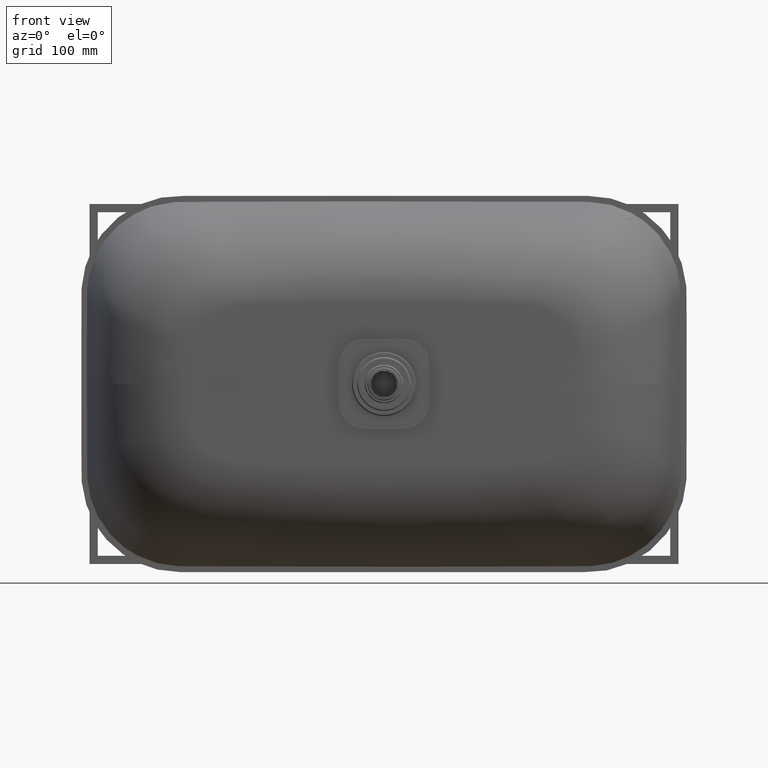
[diagram: clean part render]
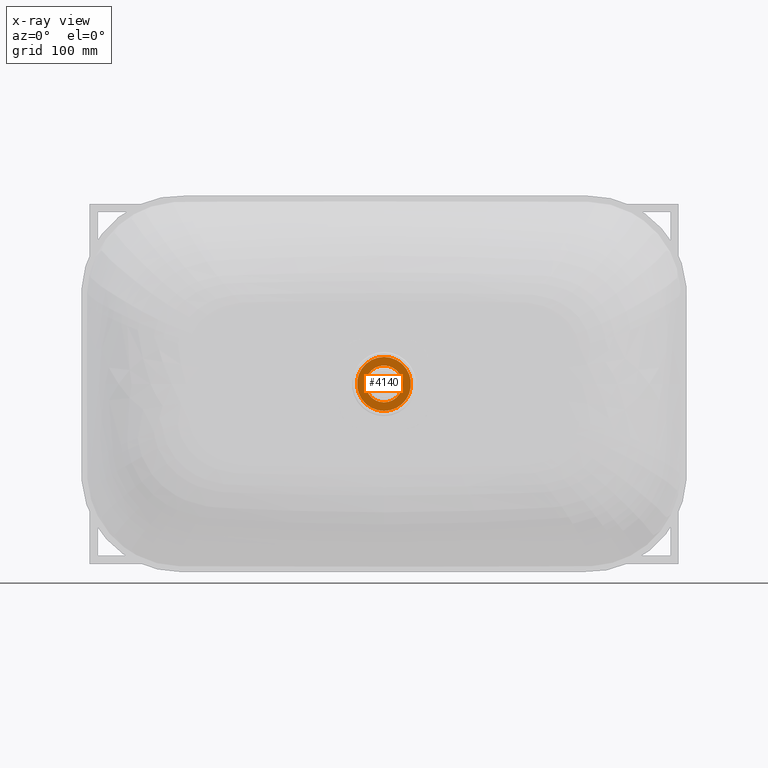
[diagram: x-ray — body ghosted, one internal face saturated and labeled with its STEP entity id]
A machine part, front view, then the same camera in x-ray: the body is ghosted and one INTERNAL B-rep face — a face not visible from any outside direction — is saturated and labeled: STEP entity #4140.
In plain terms, the highlighted planar face has unit normal (0, -1, 0).
Its self-contained STEP definition (entity closure, byte-faithful):
#735 = EDGE_LOOP ( 'NONE', ( #36099, #75787 ) ) ;
#2537 = CIRCLE ( 'NONE', #29533, 22.50000000000000400 ) ;
#3317 = FACE_BOUND ( 'NONE', #735, .T. ) ;
#4140 = ADVANCED_FACE ( 'NONE', ( #3317, #37490 ), #40359, .T. ) ;
#4175 = DIRECTION ( 'NONE',  ( 0.0000000000000000000, 0.0000000000000000000, -1.000000000000000000 ) ) ;
#10512 = CARTESIAN_POINT ( 'NONE',  ( 8.326672684688674100E-014, -136.9999999999998900, 4.718447854656915300E-013 ) ) ;
#15621 = DIRECTION ( 'NONE',  ( 0.0000000000000000000, -1.000000000000000000, 0.0000000000000000000 ) ) ;
#16891 = VERTEX_POINT ( 'NONE', #78501 ) ;
#16969 = DIRECTION ( 'NONE',  ( 0.0000000000000000000, 0.0000000000000000000, -1.000000000000000000 ) ) ;
#18504 = CIRCLE ( 'NONE', #26324, 33.00000000000000000 ) ;
#20801 = CARTESIAN_POINT ( 'NONE',  ( 8.326672684688674100E-014, -136.9999999999998900, 4.718447854656915300E-013 ) ) ;
#21133 = CIRCLE ( 'NONE', #60811, 33.00000000000000000 ) ;
#21530 = ORIENTED_EDGE ( 'NONE', *, *, #49775, .T. ) ;
#22096 = VERTEX_POINT ( 'NONE', #34598 ) ;
#22290 = CARTESIAN_POINT ( 'NONE',  ( 8.326672684688674100E-014, -136.9999999999998900, 4.718447854656915300E-013 ) ) ;
#23921 = ORIENTED_EDGE ( 'NONE', *, *, #33263, .T. ) ;
#26233 = EDGE_CURVE ( 'NONE', #73075, #36573, #26998, .T. ) ;
#26324 = AXIS2_PLACEMENT_3D ( 'NONE', #80923, #42624, #4175 ) ;
#26998 = CIRCLE ( 'NONE', #41733, 22.50000000000000400 ) ;
#27254 = DIRECTION ( 'NONE',  ( 0.0000000000000000000, 0.0000000000000000000, -1.000000000000000000 ) ) ;
#28336 = EDGE_CURVE ( 'NONE', #36573, #73075, #2537, .T. ) ;
#28756 = DIRECTION ( 'NONE',  ( 0.0000000000000000000, 0.0000000000000000000, -1.000000000000000000 ) ) ;
#29533 = AXIS2_PLACEMENT_3D ( 'NONE', #20801, #65629, #27254 ) ;
#31406 = CARTESIAN_POINT ( 'NONE',  ( 8.326672684688674100E-014, -136.9999999999998900, -22.49999999999953100 ) ) ;
#31943 = AXIS2_PLACEMENT_3D ( 'NONE', #73596, #15621, #60195 ) ;
#32772 = CARTESIAN_POINT ( 'NONE',  ( 8.602218214496828100E-014, -136.9999999999998900, 22.50000000000047600 ) ) ;
#33263 = EDGE_CURVE ( 'NONE', #16891, #22096, #18504, .T. ) ;
#34598 = CARTESIAN_POINT ( 'NONE',  ( 8.326672684688674100E-014, -136.9999999999998900, -32.99999999999953100 ) ) ;
#36099 = ORIENTED_EDGE ( 'NONE', *, *, #26233, .F. ) ;
#36573 = VERTEX_POINT ( 'NONE', #32772 ) ;
#37490 = FACE_OUTER_BOUND ( 'NONE', #52324, .T. ) ;
#40359 = PLANE ( 'NONE',  #31943 ) ;
#41733 = AXIS2_PLACEMENT_3D ( 'NONE', #10512, #55373, #16969 ) ;
#42624 = DIRECTION ( 'NONE',  ( 0.0000000000000000000, -1.000000000000000000, 0.0000000000000000000 ) ) ;
#49775 = EDGE_CURVE ( 'NONE', #22096, #16891, #21133, .T. ) ;
#52324 = EDGE_LOOP ( 'NONE', ( #21530, #23921 ) ) ;
#55373 = DIRECTION ( 'NONE',  ( 0.0000000000000000000, -1.000000000000000000, 0.0000000000000000000 ) ) ;
#60195 = DIRECTION ( 'NONE',  ( 0.0000000000000000000, -0.0000000000000000000, -1.000000000000000000 ) ) ;
#60811 = AXIS2_PLACEMENT_3D ( 'NONE', #22290, #67128, #28756 ) ;
#65629 = DIRECTION ( 'NONE',  ( 0.0000000000000000000, -1.000000000000000000, 0.0000000000000000000 ) ) ;
#67128 = DIRECTION ( 'NONE',  ( 0.0000000000000000000, -1.000000000000000000, 0.0000000000000000000 ) ) ;
#73075 = VERTEX_POINT ( 'NONE', #31406 ) ;
#73596 = CARTESIAN_POINT ( 'NONE',  ( 8.326672684688674100E-014, -136.9999999999998900, 4.718447854656915300E-013 ) ) ;
#75787 = ORIENTED_EDGE ( 'NONE', *, *, #28336, .F. ) ;
#78501 = CARTESIAN_POINT ( 'NONE',  ( 8.730806128407301300E-014, -136.9999999999998900, 33.00000000000047600 ) ) ;
#80923 = CARTESIAN_POINT ( 'NONE',  ( 8.326672684688674100E-014, -136.9999999999998900, 4.718447854656915300E-013 ) ) ;